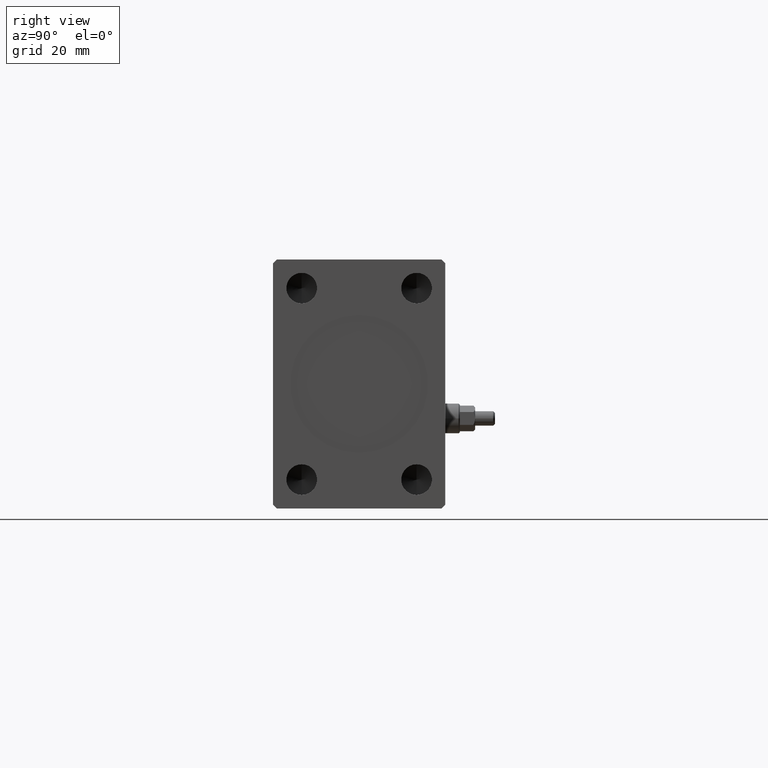
[diagram: clean part render]
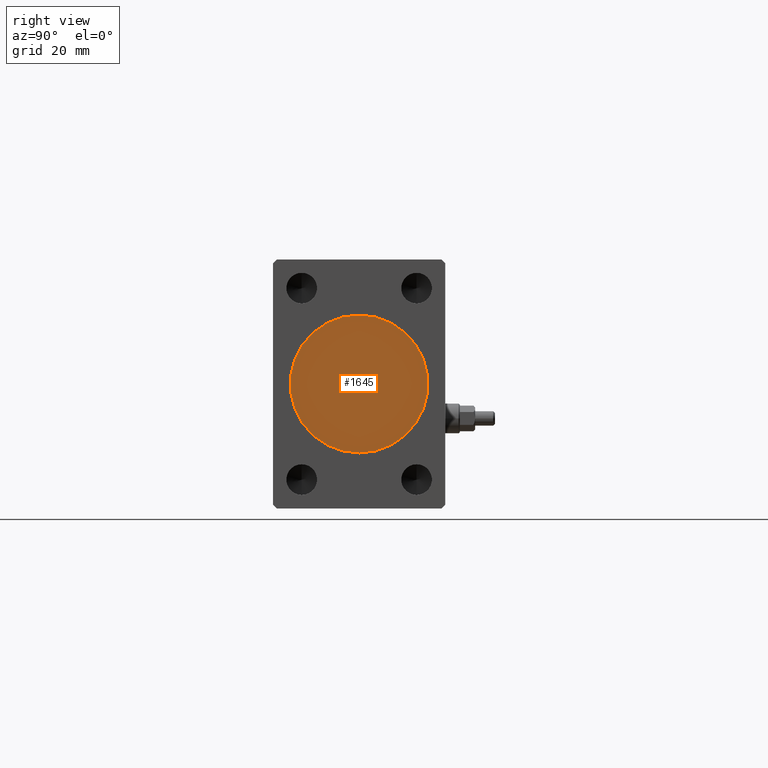
[diagram: same view with one face highlighted and labeled with its STEP entity id]
A machine part, right view. The second image highlights one B-rep face of the part: STEP entity #1645.
In plain terms, the highlighted planar face has unit normal (1, 0, 0).
Its self-contained STEP definition (entity closure, byte-faithful):
#386 = DIRECTION ( 'NONE',  ( 0.000000000000000000, 0.000000000000000000, -1.000000000000000000 ) ) ;
#1645 = ADVANCED_FACE ( 'NONE', ( #11323 ), #24588, .T. ) ;
#2240 = AXIS2_PLACEMENT_3D ( 'NONE', #10229, #35131, #386 ) ;
#2508 = VERTEX_POINT ( 'NONE', #25260 ) ;
#9160 = DIRECTION ( 'NONE',  ( 0.000000000000000000, 0.000000000000000000, -1.000000000000000000 ) ) ;
#9827 = DIRECTION ( 'NONE',  ( 1.000000000000000000, 0.000000000000000000, 0.000000000000000000 ) ) ;
#10229 = CARTESIAN_POINT ( 'NONE',  ( 162.8000000000000114, 0.000000000000000000, 0.000000000000000000 ) ) ;
#11323 = FACE_OUTER_BOUND ( 'NONE', #17962, .T. ) ;
#12074 = AXIS2_PLACEMENT_3D ( 'NONE', #31463, #21381, #25257 ) ;
#16649 = EDGE_CURVE ( 'NONE', #2508, #28374, #27013, .T. ) ;
#17962 = EDGE_LOOP ( 'NONE', ( #18848, #42956 ) ) ;
#18848 = ORIENTED_EDGE ( 'NONE', *, *, #24236, .T. ) ;
#21381 = DIRECTION ( 'NONE',  ( 1.000000000000000000, 0.000000000000000000, 0.000000000000000000 ) ) ;
#21931 = CIRCLE ( 'NONE', #2240, 18.00000000000000000 ) ;
#23771 = CARTESIAN_POINT ( 'NONE',  ( 162.8000000000000114, 0.000000000000000000, 0.000000000000000000 ) ) ;
#24236 = EDGE_CURVE ( 'NONE', #28374, #2508, #21931, .T. ) ;
#24588 = PLANE ( 'NONE',  #12074 ) ;
#25257 = DIRECTION ( 'NONE',  ( 0.000000000000000000, 0.000000000000000000, -1.000000000000000000 ) ) ;
#25260 = CARTESIAN_POINT ( 'NONE',  ( 162.8000000000000114, 2.204364238465235428E-15, 18.00000000000000000 ) ) ;
#25529 = AXIS2_PLACEMENT_3D ( 'NONE', #23771, #9827, #9160 ) ;
#27013 = CIRCLE ( 'NONE', #25529, 18.00000000000000000 ) ;
#28374 = VERTEX_POINT ( 'NONE', #32817 ) ;
#31463 = CARTESIAN_POINT ( 'NONE',  ( 162.8000000000000114, 0.000000000000000000, 0.000000000000000000 ) ) ;
#32817 = CARTESIAN_POINT ( 'NONE',  ( 162.8000000000000114, 0.000000000000000000, -18.00000000000000000 ) ) ;
#35131 = DIRECTION ( 'NONE',  ( 1.000000000000000000, 0.000000000000000000, 0.000000000000000000 ) ) ;
#42956 = ORIENTED_EDGE ( 'NONE', *, *, #16649, .T. ) ;